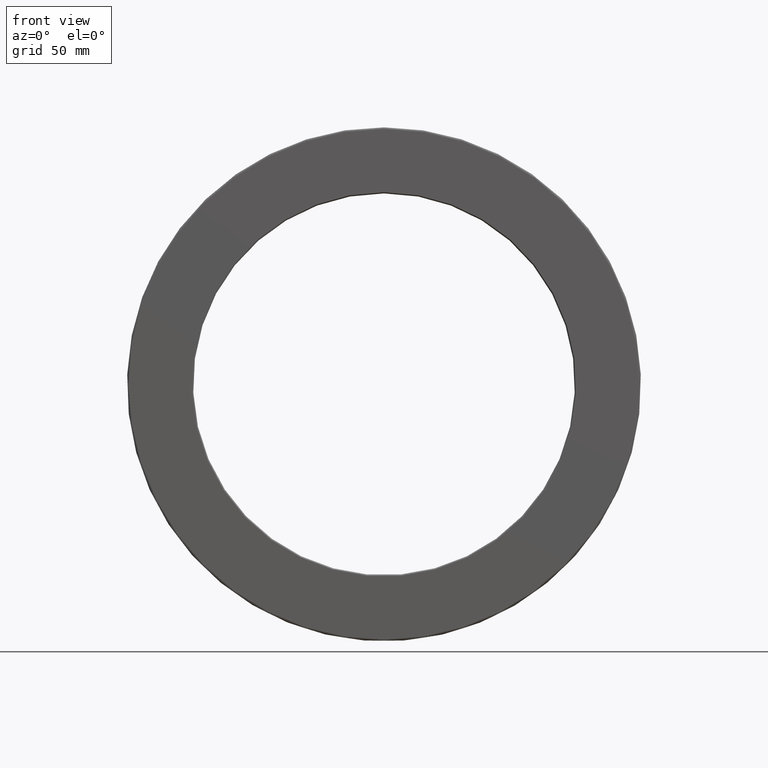
[diagram: clean part render]
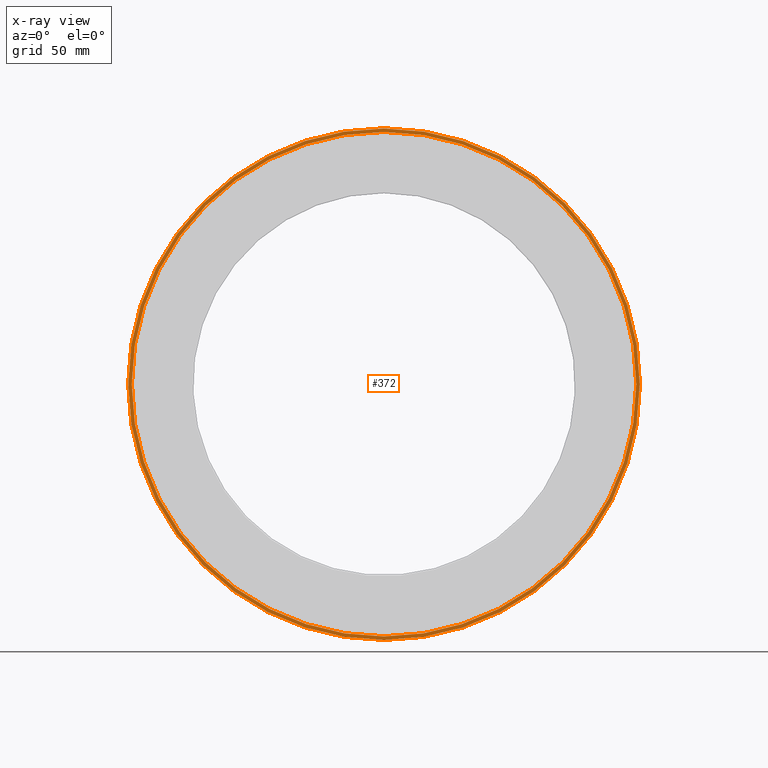
[diagram: x-ray — body ghosted, one internal face saturated and labeled with its STEP entity id]
A machine part, front view, then the same camera in x-ray: the body is ghosted and one INTERNAL B-rep face — a face not visible from any outside direction — is saturated and labeled: STEP entity #372.
In plain terms, the highlighted planar face has unit normal (-0, 1, 0).
Its self-contained STEP definition (entity closure, byte-faithful):
#42 = DIRECTION ( 'NONE',  ( -0.0000000000000000000, 1.000000000000000000, -0.0000000000000000000 ) ) ;
#57 = ORIENTED_EDGE ( 'NONE', *, *, #381, .T. ) ;
#64 = AXIS2_PLACEMENT_3D ( 'NONE', #137, #42, #136 ) ;
#91 = CIRCLE ( 'NONE', #64, 4.355000000000000400 ) ;
#101 = EDGE_CURVE ( 'NONE', #163, #163, #91, .T. ) ;
#136 = DIRECTION ( 'NONE',  ( 0.0000000000000000000, 0.0000000000000000000, 1.000000000000000000 ) ) ;
#137 = CARTESIAN_POINT ( 'NONE',  ( 0.0000000000000000000, 1.464999999999999900, 0.0000000000000000000 ) ) ;
#155 = DIRECTION ( 'NONE',  ( -0.0000000000000000000, 1.000000000000000000, -0.0000000000000000000 ) ) ;
#163 = VERTEX_POINT ( 'NONE', #448 ) ;
#181 = CIRCLE ( 'NONE', #222, 4.294999999999999900 ) ;
#196 = CARTESIAN_POINT ( 'NONE',  ( 0.0000000000000000000, 1.464999999999999900, 0.0000000000000000000 ) ) ;
#199 = DIRECTION ( 'NONE',  ( -0.0000000000000000000, 1.000000000000000000, 0.0000000000000000000 ) ) ;
#222 = AXIS2_PLACEMENT_3D ( 'NONE', #196, #155, #555 ) ;
#310 = VERTEX_POINT ( 'NONE', #495 ) ;
#329 = CARTESIAN_POINT ( 'NONE',  ( 0.0000000000000000000, 1.464999999999999900, 0.0000000000000000000 ) ) ;
#332 = DIRECTION ( 'NONE',  ( 0.0000000000000000000, 0.0000000000000000000, 1.000000000000000000 ) ) ;
#334 = ORIENTED_EDGE ( 'NONE', *, *, #101, .F. ) ;
#372 = ADVANCED_FACE ( 'NONE', ( #573, #402 ), #377, .F. ) ;
#377 = PLANE ( 'NONE',  #390 ) ;
#381 = EDGE_CURVE ( 'NONE', #310, #310, #181, .T. ) ;
#390 = AXIS2_PLACEMENT_3D ( 'NONE', #329, #199, #332 ) ;
#402 = FACE_BOUND ( 'NONE', #492, .T. ) ;
#448 = CARTESIAN_POINT ( 'NONE',  ( 0.0000000000000000000, 1.464999999999999900, 4.355000000000000400 ) ) ;
#492 = EDGE_LOOP ( 'NONE', ( #57 ) ) ;
#495 = CARTESIAN_POINT ( 'NONE',  ( 0.0000000000000000000, 1.464999999999999900, 4.294999999999999900 ) ) ;
#555 = DIRECTION ( 'NONE',  ( 0.0000000000000000000, 0.0000000000000000000, 1.000000000000000000 ) ) ;
#573 = FACE_OUTER_BOUND ( 'NONE', #592, .T. ) ;
#592 = EDGE_LOOP ( 'NONE', ( #334 ) ) ;